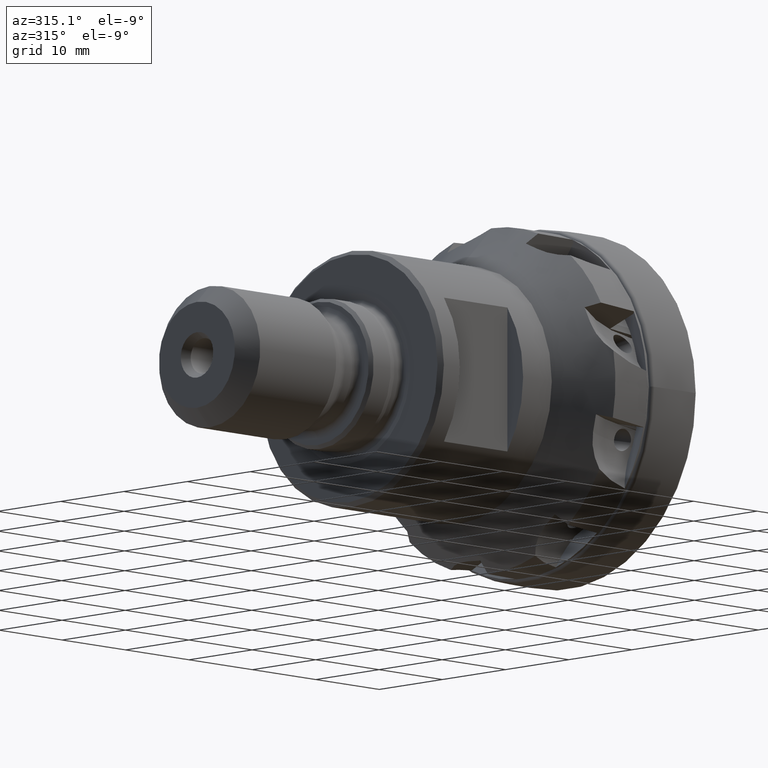
[diagram: clean part render]
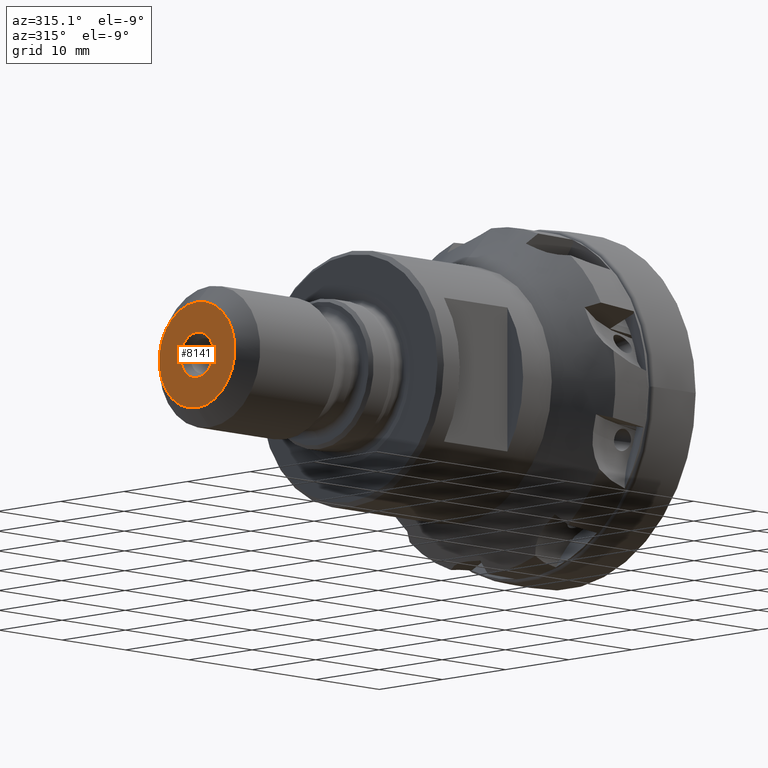
[diagram: same view with one face highlighted and labeled with its STEP entity id]
A machine part, auxiliary view. The second image highlights one B-rep face of the part: STEP entity #8141.
In plain terms, the highlighted planar face has unit normal (-1, 0, 0).
Its self-contained STEP definition (entity closure, byte-faithful):
#140 = EDGE_LOOP ( 'NONE', ( #1728, #1729 ) ) ;
#146 = EDGE_LOOP ( 'NONE', ( #1730, #1731 ) ) ;
#168 = CARTESIAN_POINT ( 'NONE',  ( -58.54999999999999700, 0.0000000000000000000, -5.999999998540237000 ) ) ;
#207 = CARTESIAN_POINT ( 'NONE',  ( -58.54999999999999700, 8.572527592243779300E-016, 5.999999998540237000 ) ) ;
#216 = CARTESIAN_POINT ( 'NONE',  ( -58.54999999999999700, 3.156343757444626900E-016, -2.577350269189611500 ) ) ;
#244 = CARTESIAN_POINT ( 'NONE',  ( -58.54999999999999700, 0.0000000000000000000, 2.577350269189611500 ) ) ;
#1728 = ORIENTED_EDGE ( 'NONE', *, *, #8103, .F. ) ;
#1729 = ORIENTED_EDGE ( 'NONE', *, *, #6931, .F. ) ;
#1730 = ORIENTED_EDGE ( 'NONE', *, *, #6930, .F. ) ;
#1731 = ORIENTED_EDGE ( 'NONE', *, *, #8108, .F. ) ;
#1869 = VERTEX_POINT ( 'NONE', #168 ) ;
#1908 = VERTEX_POINT ( 'NONE', #207 ) ;
#1917 = VERTEX_POINT ( 'NONE', #216 ) ;
#1945 = VERTEX_POINT ( 'NONE', #244 ) ;
#1956 = CIRCLE ( 'NONE', #1957, 5.999999998540237000 ) ;
#1957 = AXIS2_PLACEMENT_3D ( 'NONE', #4720, #4721, #4722 ) ;
#1965 = CIRCLE ( 'NONE', #1966, 2.577350269189611500 ) ;
#1966 = AXIS2_PLACEMENT_3D ( 'NONE', #4736, #4737, #4738 ) ;
#1988 = AXIS2_PLACEMENT_3D ( 'NONE', #4867, #4866, #4874 ) ;
#3086 = CARTESIAN_POINT ( 'NONE',  ( -58.54999999999999700, 0.0000000000000000000, 0.0000000000000000000 ) ) ;
#3087 = DIRECTION ( 'NONE',  ( -1.000000000000000000, -0.0000000000000000000, -0.0000000000000000000 ) ) ;
#3088 = DIRECTION ( 'NONE',  ( 0.0000000000000000000, 0.0000000000000000000, 1.000000000000000000 ) ) ;
#3089 = CARTESIAN_POINT ( 'NONE',  ( -58.54999999999999700, 0.0000000000000000000, 0.0000000000000000000 ) ) ;
#3090 = DIRECTION ( 'NONE',  ( 1.000000000000000000, -0.0000000000000000000, -0.0000000000000000000 ) ) ;
#3091 = DIRECTION ( 'NONE',  ( 0.0000000000000000000, 0.0000000000000000000, -1.000000000000000000 ) ) ;
#4720 = CARTESIAN_POINT ( 'NONE',  ( -58.54999999999999700, 0.0000000000000000000, 0.0000000000000000000 ) ) ;
#4721 = DIRECTION ( 'NONE',  ( 1.000000000000000000, -0.0000000000000000000, -0.0000000000000000000 ) ) ;
#4722 = DIRECTION ( 'NONE',  ( 0.0000000000000000000, 0.0000000000000000000, -1.000000000000000000 ) ) ;
#4736 = CARTESIAN_POINT ( 'NONE',  ( -58.54999999999999700, 0.0000000000000000000, 0.0000000000000000000 ) ) ;
#4737 = DIRECTION ( 'NONE',  ( -1.000000000000000000, -0.0000000000000000000, -0.0000000000000000000 ) ) ;
#4738 = DIRECTION ( 'NONE',  ( 0.0000000000000000000, 0.0000000000000000000, 1.000000000000000000 ) ) ;
#4866 = DIRECTION ( 'NONE',  ( -1.000000000000000000, 0.0000000000000000000, 0.0000000000000000000 ) ) ;
#4867 = CARTESIAN_POINT ( 'NONE',  ( -58.54999999999999700, -7.170307009007752700E-015, 0.0000000000000000000 ) ) ;
#4868 = FACE_OUTER_BOUND ( 'NONE', #140, .T. ) ;
#4870 = FACE_BOUND ( 'NONE', #146, .T. ) ;
#4871 = PLANE ( 'NONE',  #1988 ) ;
#4874 = DIRECTION ( 'NONE',  ( 0.0000000000000000000, 0.0000000000000000000, 1.000000000000000000 ) ) ;
#5436 = CIRCLE ( 'NONE', #5445, 2.577350269189611500 ) ;
#5442 = CIRCLE ( 'NONE', #5447, 5.999999998540237000 ) ;
#5445 = AXIS2_PLACEMENT_3D ( 'NONE', #3086, #3087, #3088 ) ;
#5447 = AXIS2_PLACEMENT_3D ( 'NONE', #3089, #3090, #3091 ) ;
#6930 = EDGE_CURVE ( 'NONE', #1945, #1917, #5436, .T. ) ;
#6931 = EDGE_CURVE ( 'NONE', #1908, #1869, #5442, .T. ) ;
#8103 = EDGE_CURVE ( 'NONE', #1869, #1908, #1956, .T. ) ;
#8108 = EDGE_CURVE ( 'NONE', #1917, #1945, #1965, .T. ) ;
#8141 = ADVANCED_FACE ( 'NONE', ( #4868, #4870 ), #4871, .T. ) ;